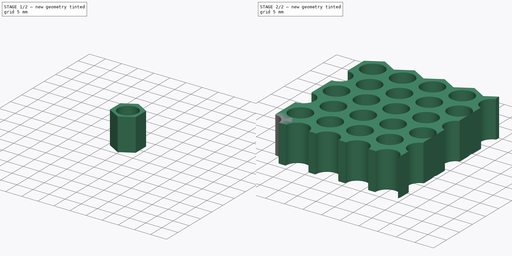
[diagram: build sequence overview — one tinted view per stage of 2, left to right]
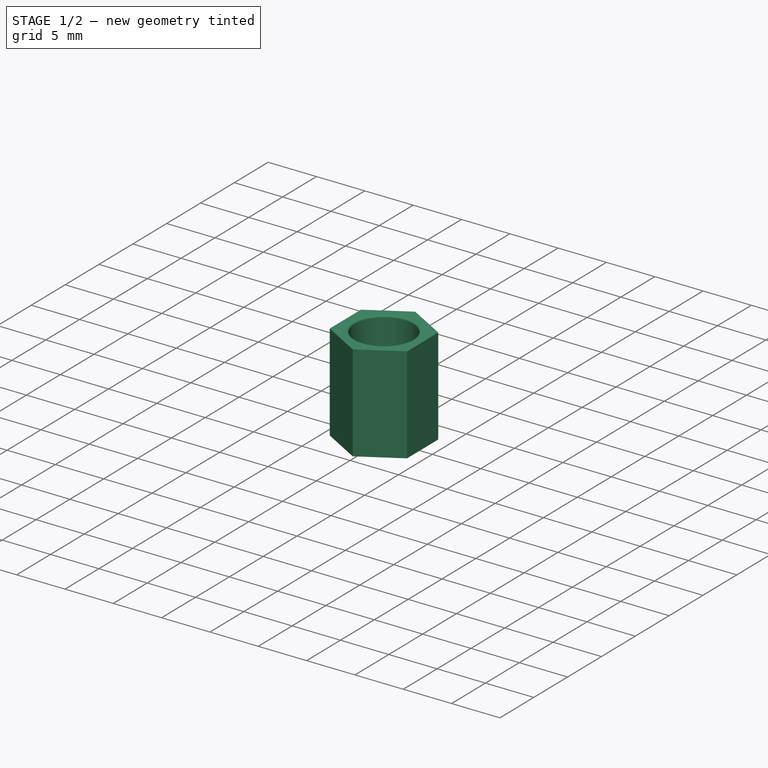
[diagram: stage 1 of 2 — iso view after this stage's code; geometry added in this stage tinted green]
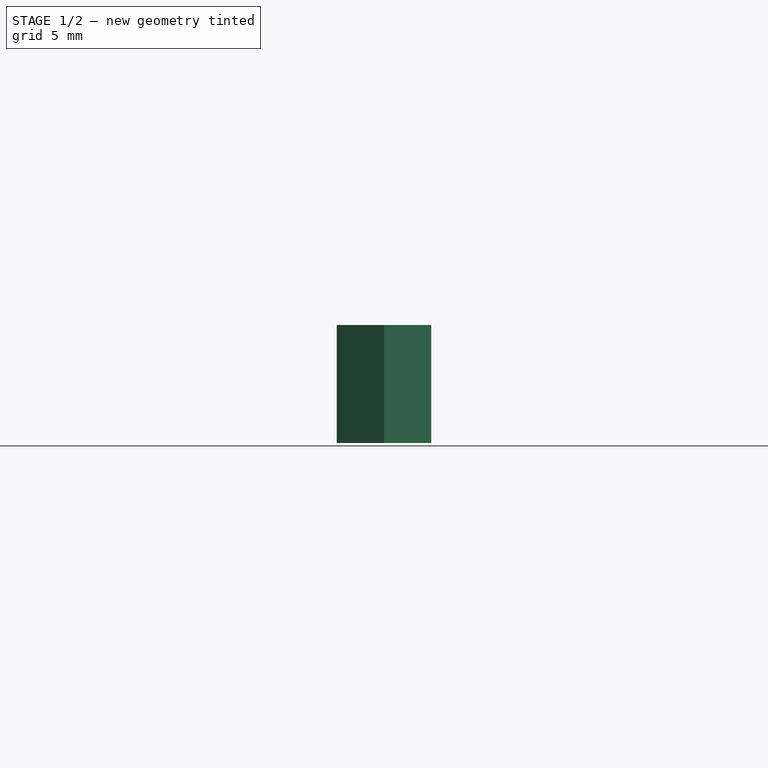
[diagram: stage 1 of 2 — front view after this stage's code; geometry added in this stage tinted green]
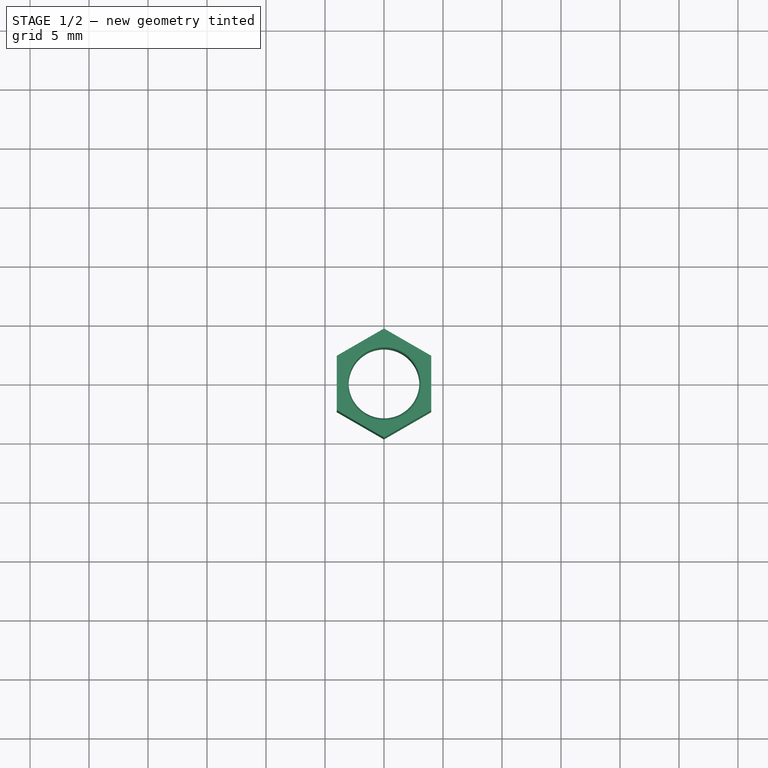
[diagram: stage 1 of 2 — top view after this stage's code; geometry added in this stage tinted green]
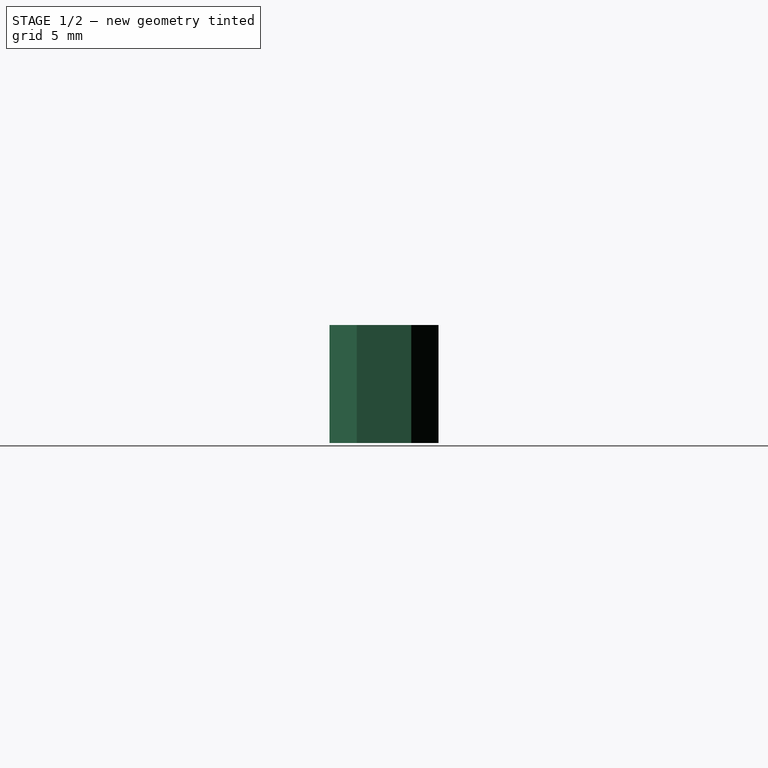
[diagram: stage 1 of 2 — right view after this stage's code; geometry added in this stage tinted green]
FCSTD DOCUMENT  (FreeCAD 0.20R27319 (Git))
Label: Failed Intersection_SHALM
License: All rights reserved
LicenseURL: http://en.wikipedia.org/wiki/All_rights_reserved
objects: PartDesign::LinearPattern×3, Sketcher::SketchObject×2, Spreadsheet::Sheet×1, PartDesign::Pad×1, PartDesign::Fillet×1, PartDesign::MultiTransform×1, PartDesign::Pocket×1, PartDesign::Body×1
note: 13 computed .brp shape members not serialized (recipe doc carries the construction recipe); baked Part::Feature solids carry a one-line shape summary decoded from their .brp

FEATURE [Spreadsheet::Sheet] Spreadsheet
  cells = A1=ControlDimension; B1(ControlDimension)=8; A2=X_Repeat; B2(X_Repeat)=5; A3=Y_Repeat; B3(Y_Repeat)=3; A4=Wall Thickness; B4(WallThickness)=2; A5=FilletSize; B5(FilletSize)=4; A7=Spreadsheet.ControlDimension * (Occurrences - 1)
FEATURE [Sketcher::SketchObject] Sketch001
  FullyConstrained = true
  MapMode = 5
  Support = -> [XY_Plane001]
  expr: Constraints[19] = Spreadsheet.ControlDimension
  expr: Constraints[26] = Spreadsheet.WallThickness / 2
  sketch-geometry (10):
    g0: LineSegment StartX=4 StartY=-2.3094 StartZ=0 EndX=4 EndY=2.3094 EndZ=0
    g1: LineSegment StartX=4 StartY=2.3094 StartZ=0 EndX=0 EndY=4.6188 EndZ=0
    g2: LineSegment StartX=0 StartY=4.6188 StartZ=0 EndX=-4 EndY=2.3094 EndZ=0
    g3: LineSegment StartX=-4 StartY=2.3094 StartZ=0 EndX=-4 EndY=-2.3094 EndZ=0
    g4: LineSegment StartX=-4 StartY=-2.3094 StartZ=0 EndX=9e-16 EndY=-4.6188 EndZ=0
    g5: LineSegment StartX=9e-16 StartY=-4.6188 StartZ=0 EndX=4 EndY=-2.3094 EndZ=0
    g6: Circle CenterX=0 CenterY=0 CenterZ=0 NormalX=0 NormalY=0 NormalZ=1 AngleXU=0 Radius=4.6188
    g7: Circle CenterX=0 CenterY=0 CenterZ=0 NormalX=0 NormalY=0 NormalZ=1 AngleXU=0 Radius=3
    g8: LineSegment StartX=0 StartY=0 StartZ=0 EndX=2 EndY=3.4641 EndZ=0
    g9: GeomPoint X=3 Y=0 Z=0
  constraints (24):
    c: Coincident(g0,g1)
    c: Coincident(g1,g2)
    c: Coincident(g2,g3)
    c: Coincident(g3,g4)
    c: Coincident(g4,g5)
    c: Coincident(g5,g0)
    c: Equal(g0, g1-g5) x5
    c: PointOnObject(g0,g6)
    c: PointOnObject(g1,g6)
    c: PointOnObject(g2,g6)
    c: PointOnObject(g3,g6)
    c: PointOnObject(g4,g6)
    c: PointOnObject(g5,g6)
    c: Coincident(g6,g-1)
    c: PointOnObject(g1,g-2)
    c: DistanceX(g2,g0) = 8
    c: Coincident(g7,g6)
    c: Coincident(g8,g7)
    c: PointOnObject(g8,g1)
    c: Perpendicular(g8,g1)
    c: PointOnObject(g9,g7)
    c: PointOnObject(g9,g-1)
    c: Distance(g9,g0) = 1
    c: DistanceY(g7,g1) = 4.6188  'DD'
FEATURE [PartDesign::Pad] Pad001  label="Hex Basic"
  Direction = (0,0,1)
  Length = 10
  Length2 = 10
  Profile = -> Sketch001
  ReferenceAxis = -> Sketch001 [N_Axis]
  Type = 0
FEATURE [PartDesign::Fillet] Fillet
  Base = -> Pad001 [Edge20,Edge21]
  BaseFeature = -> Pad001
  Radius = 0.2
  SupportTransform = false
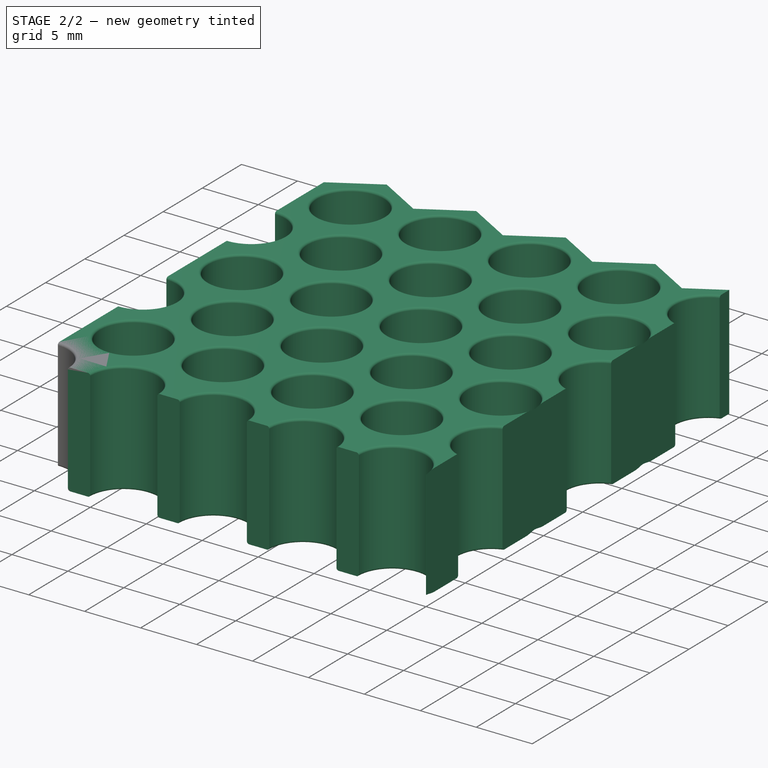
[diagram: stage 2 of 2 — iso view after this stage's code; geometry added in this stage tinted green]
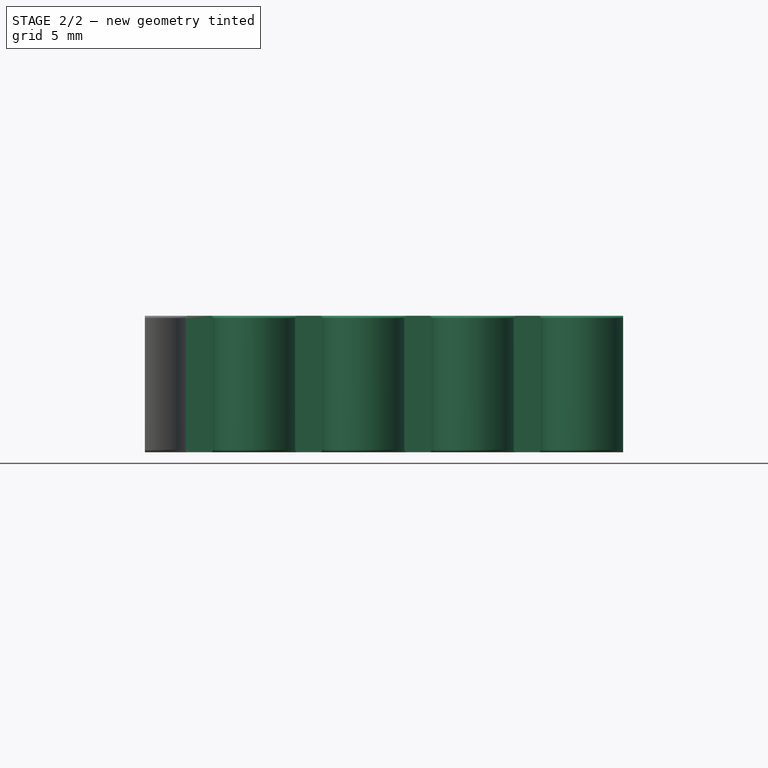
[diagram: stage 2 of 2 — front view after this stage's code; geometry added in this stage tinted green]
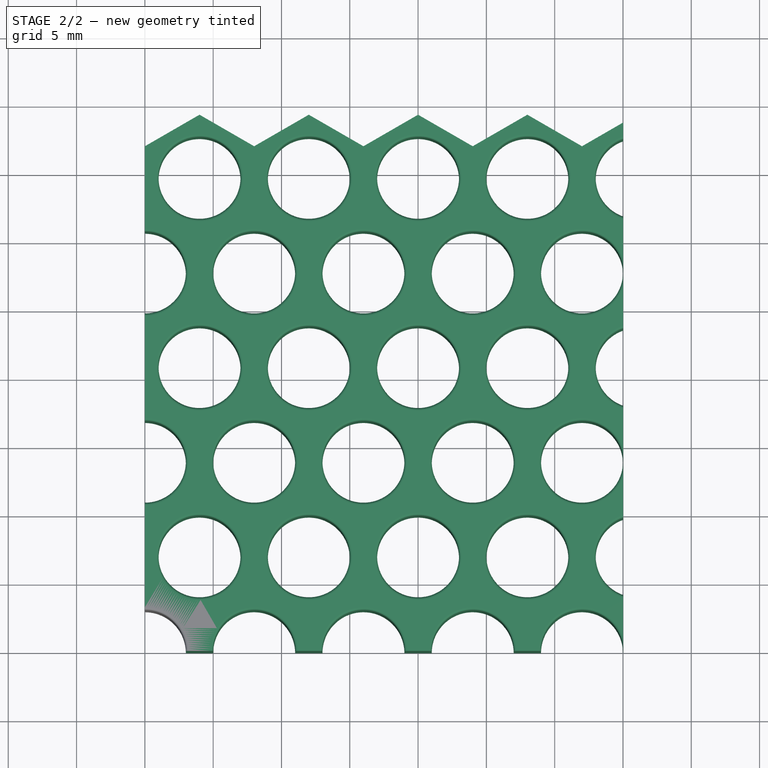
[diagram: stage 2 of 2 — top view after this stage's code; geometry added in this stage tinted green]
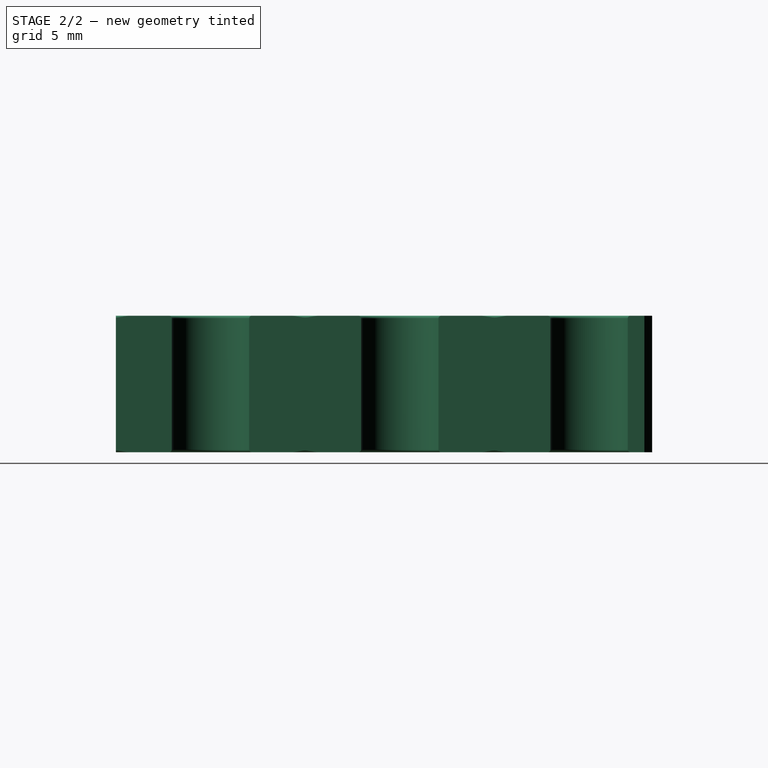
[diagram: stage 2 of 2 — right view after this stage's code; geometry added in this stage tinted green]
FEATURE [PartDesign::LinearPattern] LinearPattern
  Direction = -> Sketch001 [Axis0]
  Length = 8
  Occurrences = 2
  Overlap = 0
  Refine = true
FEATURE [PartDesign::LinearPattern] LinearPattern001
  Direction = -> Sketch001 [H_Axis]
  Length = 32
  Occurrences = 5
  Overlap = 0
  Refine = true
  expr: Length = Spreadsheet.ControlDimension * (Occurrences - 1)
  expr: Occurrences = Spreadsheet.X_Repeat
FEATURE [PartDesign::LinearPattern] LinearPattern002
  Direction = -> Sketch001 [V_Axis]
  Length = 27.7128
  Occurrences = 3
  Overlap = 0
  Refine = true
  expr: Length = Sketch001.Constraints.DD * 3 * (Occurrences - 1)
  expr: Occurrences = Spreadsheet.Y_Repeat
FEATURE [PartDesign::MultiTransform] MultiTransform
  BaseFeature = -> Fillet
  Originals = -> [Pad001,Fillet]
  Overlap = 0
  Refine = true
  Transformations = -> [LinearPattern,LinearPattern001,LinearPattern002]
FEATURE [Sketcher::SketchObject] Sketch003
  FullyConstrained = true
  MapMode = 5
  Support = -> [XY_Plane001]
  sketch-geometry (14):
    g0: LineSegment StartX=0 StartY=0 StartZ=0 EndX=35.01 EndY=0 EndZ=0
    g1: LineSegment StartX=35.01 StartY=0 StartZ=0 EndX=35.01 EndY=40 EndZ=0
    g2: LineSegment StartX=35.01 StartY=40 StartZ=0 EndX=0 EndY=40 EndZ=0
    g3: LineSegment StartX=0 StartY=40 StartZ=0 EndX=0 EndY=0 EndZ=0
    g4: GeomPoint X=17.505 Y=20 Z=0
    g5: LineSegment StartX=-10 StartY=-10 StartZ=0 EndX=-10 EndY=50 EndZ=0
    g6: LineSegment StartX=-10 StartY=50 StartZ=0 EndX=45.01 EndY=50 EndZ=0
    g7: LineSegment StartX=45.01 StartY=50 StartZ=0 EndX=45.01 EndY=-10 EndZ=0
    g8: LineSegment StartX=45.01 StartY=-10 StartZ=0 EndX=-10 EndY=-10 EndZ=0
    g9: GeomPoint X=17.505 Y=20 Z=0
    g10: LineSegment StartX=35.01 StartY=40 StartZ=0 EndX=45.01 EndY=40 EndZ=0
    g11: LineSegment StartX=45.01 StartY=40 StartZ=0 EndX=45.01 EndY=50 EndZ=0
    g12: LineSegment StartX=45.01 StartY=50 StartZ=0 EndX=35.01 EndY=50 EndZ=0
    g13: LineSegment StartX=35.01 StartY=50 StartZ=0 EndX=35.01 EndY=40 EndZ=0
  constraints (34):
    c: Coincident(g0,g1)
    c: Coincident(g1,g2)
    c: Coincident(g2,g3)
    c: Coincident(g3,g0)
    c: Horizontal(g0)
    c: Horizontal(g2)
    c: Vertical(g1)
    c: Vertical(g3)
    c: Coincident(g0,g-1)
    c: Distance(g1) = 40
    c: Distance(g2) = 35.01
    c: Symmetric(g1,g0,g4)
    c: Coincident(g5,g6)
    c: Coincident(g6,g7)
    c: Coincident(g7,g8)
    c: Coincident(g8,g5)
    c: Horizontal(g6)
    c: Horizontal(g8)
    c: Vertical(g5)
    c: Vertical(g7)
    c: Symmetric(g6,g5,g9)
    c: Coincident(g9,g4)
    c: Coincident(g10,g11)
    c: Coincident(g11,g12)
    c: Coincident(g12,g13)
    c: Coincident(g13,g10)
    c: Horizontal(g10)
    c: Horizontal(g12)
    c: Vertical(g11)
    c: Vertical(g13)
    c: Coincident(g10,g1)
    c: Coincident(g11,g6)
    c: Equal(g10,g13)
    c: DistanceX(g12,g6) = 10
FEATURE [PartDesign::Pocket] Pocket
  BaseFeature = -> MultiTransform
  Direction = (0,0,-1)
  Length = 5
  Length2 = 5
  Profile = -> Sketch003
  ReferenceAxis = -> Sketch003 [N_Axis]
  Refine = true
  Reversed = true
  Type = 1
FEATURE [PartDesign::Body] Body001  label="Hex"
  Group = -> [Sketch001,Pad001,Fillet,MultiTransform,LinearPattern,LinearPattern001,LinearPattern002,Sketch003,Pocket]
  Origin = -> Origin001
  Tip = -> Pocket
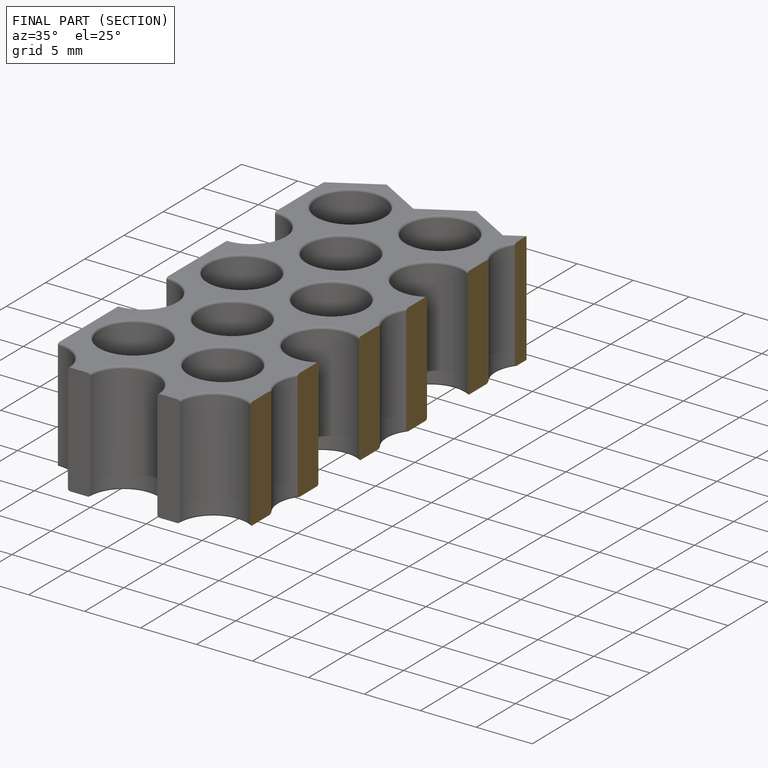
[diagram: finished part — half-section view (interior)]
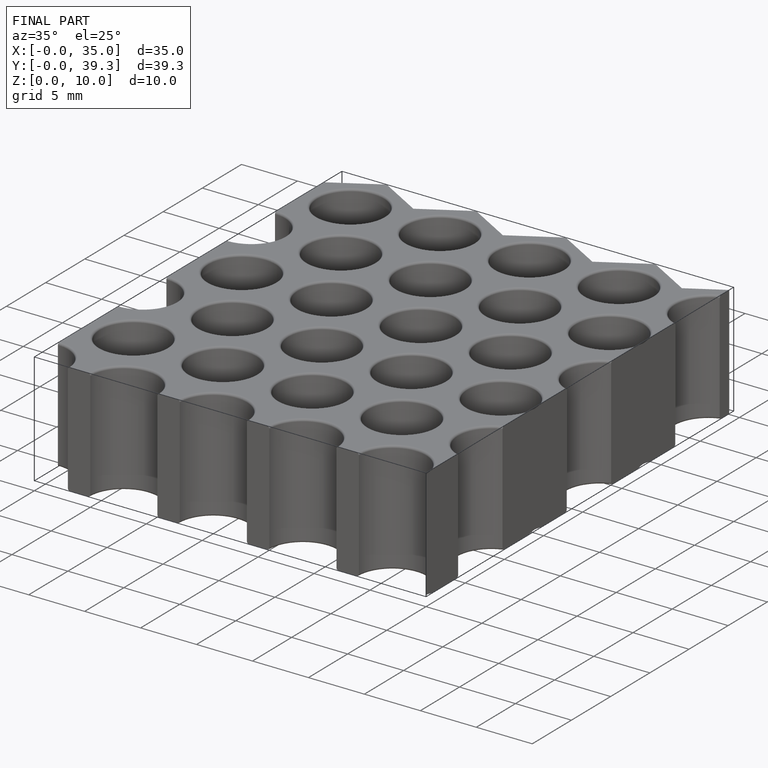
[diagram: finished part — iso view with bounding-box wireframe]
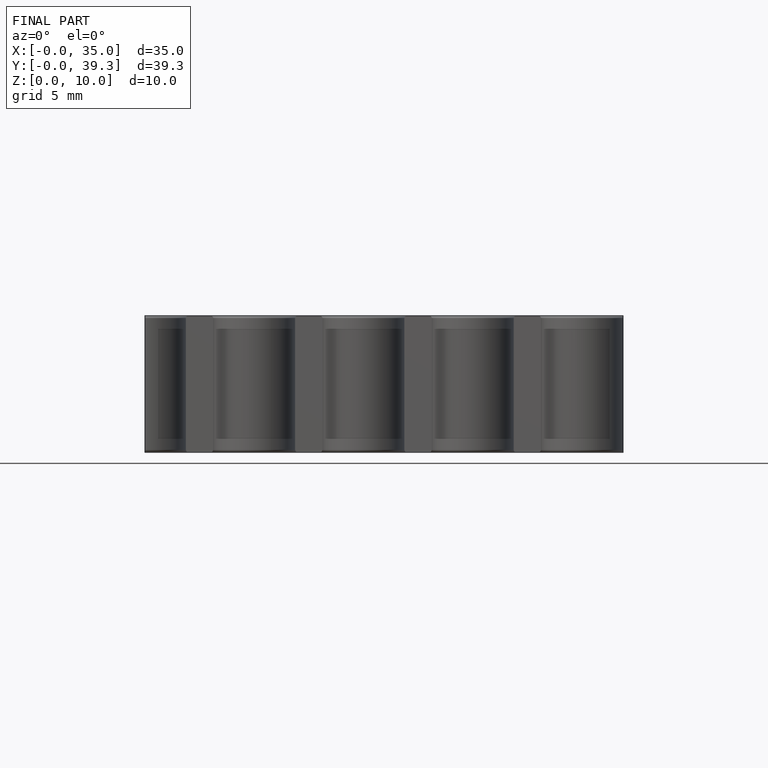
[diagram: finished part — front view with bounding-box wireframe]
